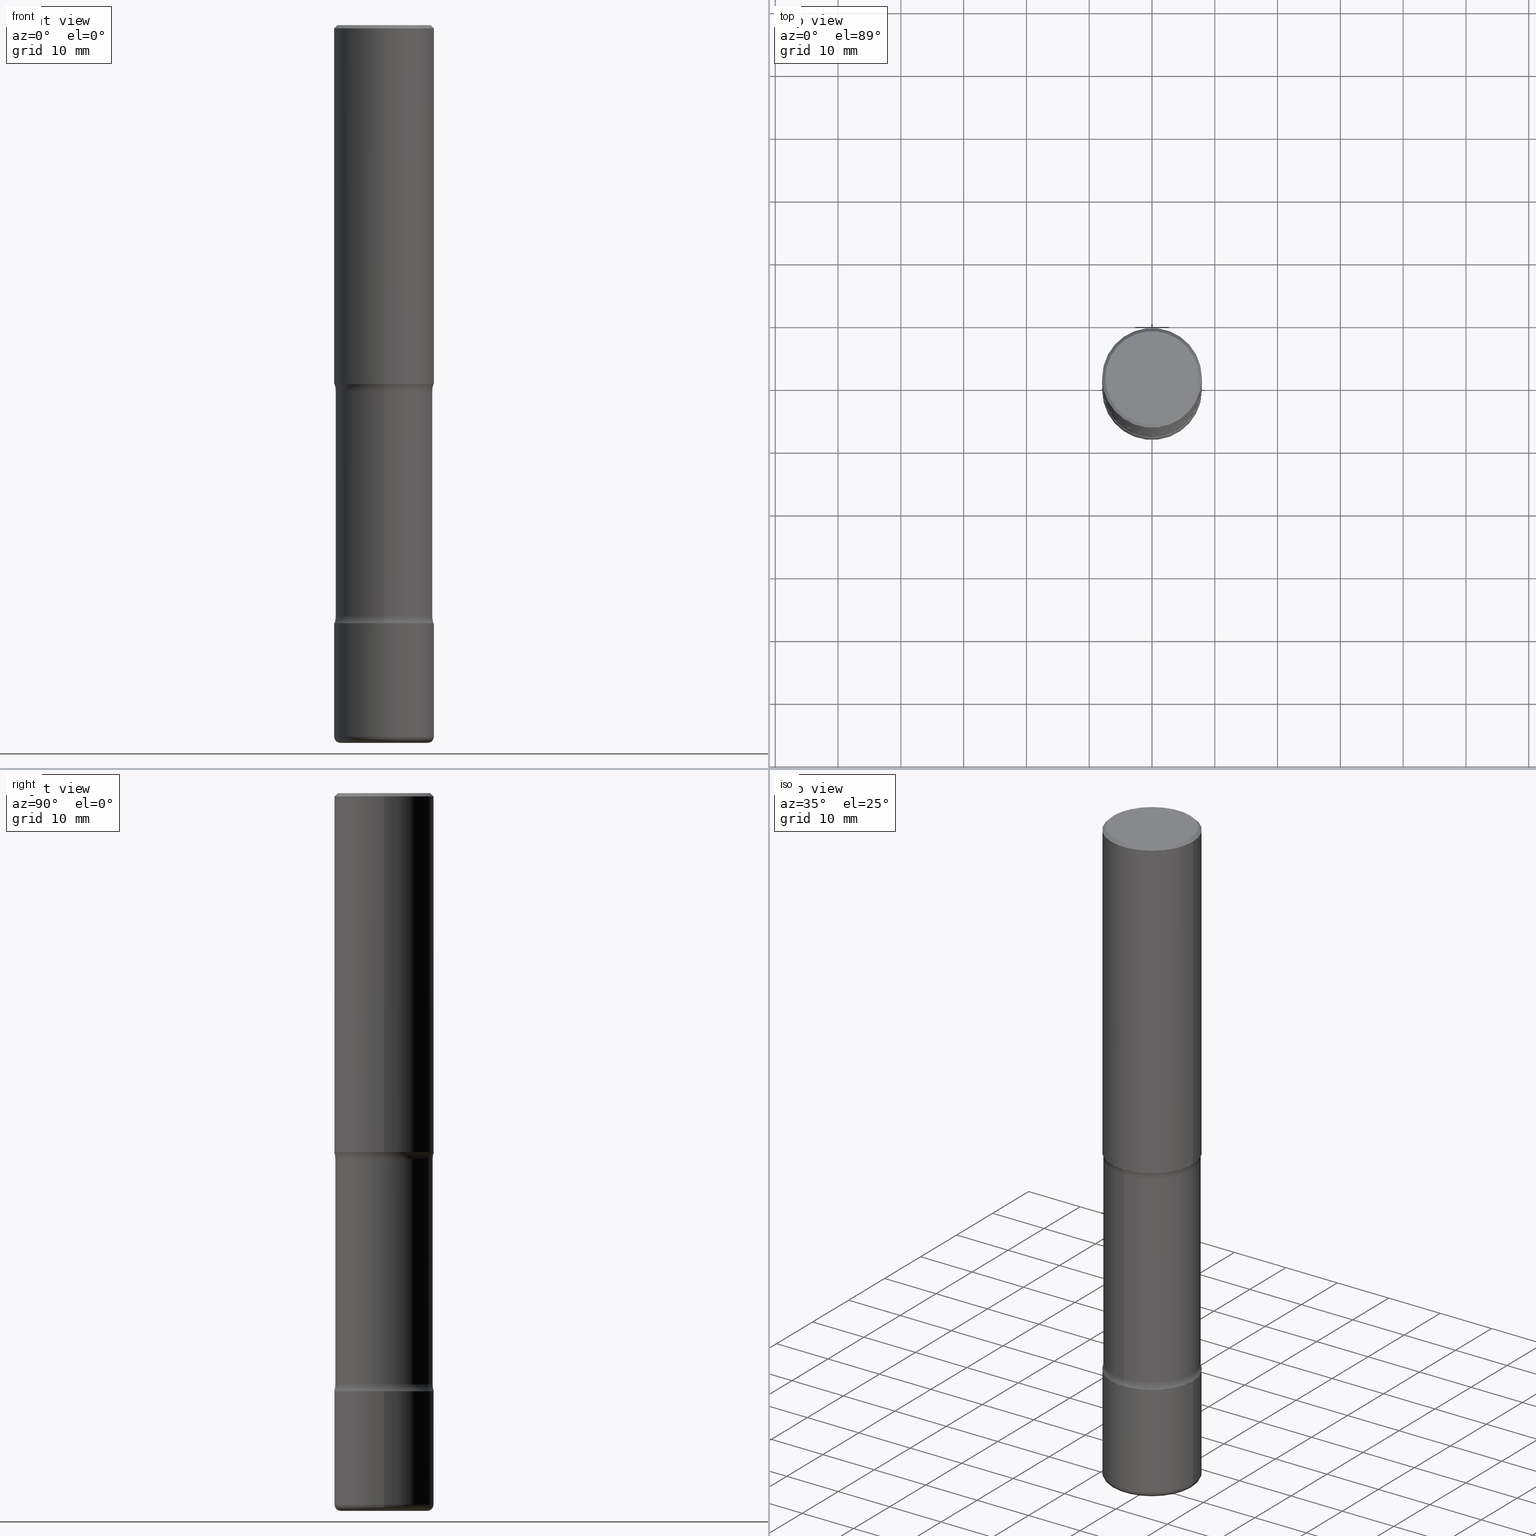
[diagram: canonical four-view strip — front | top / right | iso, engineering-drawing reading convention]
A machine part, canonical four-view strip (front | top / right | iso — engineering-drawing reading convention). The complete STEP part file that produces these views, byte-faithful:
ISO-10303-21;
HEADER;
FILE_DESCRIPTION (( 'STEP AP203' ),
    '1' );
FILE_NAME ('36789.STEP',
    '2024-03-02T00:03:39',
    ( '' ),
    ( '' ),
    'SwSTEP 2.0',
    'SolidWorks 2023',
    '' );
FILE_SCHEMA (( 'CONFIG_CONTROL_DESIGN' ));
ENDSEC;

DATA;
#1 = DIRECTION ( 'NONE',  ( -6.982962677686266711E-15, -1.000000000000000000, 0.000000000000000000 ) ) ;
#2 = DIRECTION ( 'NONE',  ( -6.982962677686265133E-15, -1.000000000000000000, 0.000000000000000000 ) ) ;
#3 = ORIENTED_EDGE ( 'NONE', *, *, #45, .T. ) ;
#4 = AXIS2_PLACEMENT_3D ( 'NONE', #35, #338, #80 ) ;
#5 = ORIENTED_EDGE ( 'NONE', *, *, #199, .T. ) ;
#6 = FACE_OUTER_BOUND ( 'NONE', #243, .T. ) ;
#7 = LENGTH_MEASURE_WITH_UNIT ( LENGTH_MEASURE( 0.02539999999999999897 ), #224 );
#8 = CARTESIAN_POINT ( 'NONE',  ( -0.3125000000000003331, -1.742385270336653059E-15, -2.250000000000000000 ) ) ;
#9 = CARTESIAN_POINT ( 'NONE',  ( 0.3125000000000000000, -2.213735251080466911E-15, -0.02000000000000006981 ) ) ;
#10 = DIRECTION ( 'NONE',  ( 6.982962677686265133E-15, 1.000000000000000000, -3.582751467100671728E-15 ) ) ;
#11 = DIRECTION ( 'NONE',  ( -2.445468806185136597E-29, 3.491481338843145583E-15, 1.000000000000000000 ) ) ;
#12 = PLANE ( 'NONE',  #105 ) ;
#13 = CARTESIAN_POINT ( 'NONE',  ( 9.066216591215492828E-29, -1.294415449588955929E-14, -3.707353194726920265 ) ) ;
#14 = ORIENTED_EDGE ( 'NONE', *, *, #431, .F. ) ;
#15 = CLOSED_SHELL ( 'NONE', ( #333, #326, #342, #138, #538, #22, #516, #240 ) ) ;
#16 = DIRECTION ( 'NONE',  ( -2.445468806185136597E-29, 3.491481338843145583E-15, 1.000000000000000000 ) ) ;
#17 = LOCAL_TIME ( 19, 3, 39.00000000000000000, #439 ) ;
#18 = ADVANCED_FACE ( 'NONE', ( #391 ), #185, .T. ) ;
#19 = ORIENTED_EDGE ( 'NONE', *, *, #31, .T. ) ;
#20 = DIRECTION ( 'NONE',  ( 2.438088387897960049E-29, -3.491481338843145188E-15, -1.000000000000000000 ) ) ;
#21 = ORIENTED_EDGE ( 'NONE', *, *, #31, .F. ) ;
#22 = ADVANCED_FACE ( 'NONE', ( #85 ), #434, .F. ) ;
#23 = CONICAL_SURFACE ( 'NONE', #340, 0.3125000000000000000, 0.7853981633974479459 ) ;
#24 = CIRCLE ( 'NONE', #201, 0.3125000000000001665 ) ;
#25 = CARTESIAN_POINT ( 'NONE',  ( 0.2924999999999999267, -2.110215457714319931E-15, 4.268512490114932791E-18 ) ) ;
#26 = EDGE_LOOP ( 'NONE', ( #19, #500, #464, #206 ) ) ;
#27 = EDGE_LOOP ( 'NONE', ( #56, #93, #5, #423 ) ) ;
#28 = CALENDAR_DATE ( 2024, 1, 3 ) ;
#29 = CIRCLE ( 'NONE', #454, 0.1250000000000000278 ) ;
#30 = CARTESIAN_POINT ( 'NONE',  ( 4.890937612370289799E-31, -6.982962677686315028E-17, -0.02000000000000006981 ) ) ;
#31 = EDGE_CURVE ( 'NONE', #266, #97, #465, .T. ) ;
#32 = EDGE_CURVE ( 'NONE', #71, #217, #350, .T. ) ;
#33 = DIRECTION ( 'NONE',  ( 6.860497997771529985E-15, 1.000000000000000000, 0.000000000000000000 ) ) ;
#34 = DIRECTION ( 'NONE',  ( -6.982962677686266711E-15, -1.000000000000000000, 3.491481338843145583E-15 ) ) ;
#35 = CARTESIAN_POINT ( 'NONE',  ( 9.066216591215492828E-29, -1.294415449588955929E-14, -3.707353194726920265 ) ) ;
#36 = CARTESIAN_POINT ( 'NONE',  ( 5.311540888107860416E-29, -8.129017811763502601E-15, -2.249999999999999556 ) ) ;
#37 = PERSON_AND_ORGANIZATION_ROLE ( 'design_supplier' ) ;
#38 = DIRECTION ( 'NONE',  ( 1.000000000000000000, -6.982962677686264344E-15, 4.883557194083112340E-29 ) ) ;
#39 = ORIENTED_EDGE ( 'NONE', *, *, #74, .F. ) ;
#40 = VECTOR ( 'NONE', #228, 39.37007874015748143 ) ;
#41 = AXIS2_PLACEMENT_3D ( 'NONE', #313, #491, #409 ) ;
#42 = PERSON_AND_ORGANIZATION ( #98, #548 ) ;
#43 = CARTESIAN_POINT ( 'NONE',  ( 3.002673951405150221E-15, 0.4299999999999919442, -2.292646805273081512 ) ) ;
#44 = DIRECTION ( 'NONE',  ( 2.572644756724267881E-29, -3.309358139265528035E-15, -1.000000000000000000 ) ) ;
#45 = EDGE_CURVE ( 'NONE', #132, #150, #91, .T. ) ;
#46 = ORIENTED_EDGE ( 'NONE', *, *, #145, .F. ) ;
#47 = ORIENTED_EDGE ( 'NONE', *, *, #493, .F. ) ;
#48 = DIRECTION ( 'NONE',  ( -2.572644756724267320E-29, 3.309358139265528035E-15, 1.000000000000000000 ) ) ;
#49 = DIRECTION ( 'NONE',  ( -2.445468806185136597E-29, 3.491481338843145583E-15, 1.000000000000000000 ) ) ;
#50 = VECTOR ( 'NONE', #442, 39.37007874015748143 ) ;
#51 = EDGE_CURVE ( 'NONE', #132, #71, #496, .T. ) ;
#52 = TOROIDAL_SURFACE ( 'NONE', #4, 0.4300000000000000488, 0.1250000000000000000 ) ;
#53 = CC_DESIGN_PERSON_AND_ORGANIZATION_ASSIGNMENT ( #130, #549, ( #469 ) ) ;
#54 = CARTESIAN_POINT ( 'NONE',  ( 1.109999159073746203E-28, -1.557507362511094324E-14, -4.500000000000000000 ) ) ;
#55 = CARTESIAN_POINT ( 'NONE',  ( 2.182175836777051038E-15, 0.3124999999999870104, -3.750000000000001332 ) ) ;
#56 = ORIENTED_EDGE ( 'NONE', *, *, #32, .F. ) ;
#57 = ORIENTED_EDGE ( 'NONE', *, *, #324, .F. ) ;
#58 = FACE_OUTER_BOUND ( 'NONE', #405, .T. ) ;
#59 = AXIS2_PLACEMENT_3D ( 'NONE', #13, #486, #267 ) ;
#60 = DIRECTION ( 'NONE',  ( 1.000000000000000000, -6.982962677686266711E-15, 0.000000000000000000 ) ) ;
#61 = AXIS2_PLACEMENT_3D ( 'NONE', #172, #84, #254 ) ;
#62 = ADVANCED_FACE ( 'NONE', ( #288 ), #120, .T. ) ;
#63 = ORIENTED_EDGE ( 'NONE', *, *, #51, .F. ) ;
#64 = PLANE ( 'NONE',  #68 ) ;
#65 = CARTESIAN_POINT ( 'NONE',  ( 1.100460962783311469E-28, -1.571166602479415690E-14, -4.500000000000000000 ) ) ;
#66 = VERTEX_POINT ( 'NONE', #366 ) ;
#67 = ORIENTED_EDGE ( 'NONE', *, *, #294, .T. ) ;
#68 = AXIS2_PLACEMENT_3D ( 'NONE', #417, #20, #198 ) ;
#69 = TOROIDAL_SURFACE ( 'NONE', #285, 0.2725000000000001865, 0.04000000000000004940 ) ;
#70 = ORIENTED_EDGE ( 'NONE', *, *, #515, .T. ) ;
#71 = VERTEX_POINT ( 'NONE', #292 ) ;
#72 = PERSON_AND_ORGANIZATION ( #98, #548 ) ;
#73 = DIRECTION ( 'NONE',  ( -2.445468806185136597E-29, 3.491481338843145583E-15, 1.000000000000000000 ) ) ;
#74 = EDGE_CURVE ( 'NONE', #494, #144, #194, .T. ) ;
#75 = PRODUCT_DEFINITION_SHAPE ( 'NONE', 'NONE',  #469 ) ;
#76 = CARTESIAN_POINT ( 'NONE',  ( 4.890937612370289799E-31, -6.982962677686315028E-17, -0.02000000000000006981 ) ) ;
#77 = SECURITY_CLASSIFICATION_LEVEL ( 'unclassified' ) ;
#78 = AXIS2_PLACEMENT_3D ( 'NONE', #377, #550, #169 ) ;
#79 = CIRCLE ( 'NONE', #253, 0.3125000000000001665 ) ;
#80 = DIRECTION ( 'NONE',  ( 6.982962677686265922E-15, 1.000000000000000000, -3.309358139265528035E-15 ) ) ;
#81 = CARTESIAN_POINT ( 'NONE',  ( 2.129803616694422892E-15, 0.3049999999999845057, -4.500000000000000888 ) ) ;
#82 = PRODUCT ( '36789', '36789', '', ( #102 ) ) ;
#83 = DIRECTION ( 'NONE',  ( 2.438088387897960049E-29, -3.491481338843145188E-15, -1.000000000000000000 ) ) ;
#84 = DIRECTION ( 'NONE',  ( -2.445468806185136597E-29, 3.491481338843145583E-15, 1.000000000000000000 ) ) ;
#85 = FACE_OUTER_BOUND ( 'NONE', #488, .T. ) ;
#86 = DIRECTION ( 'NONE',  ( -2.445468806185136597E-29, 3.491481338843145583E-15, 1.000000000000000000 ) ) ;
#87 = CARTESIAN_POINT ( 'NONE',  ( 5.311540888107860416E-29, -8.129017811763502601E-15, -2.249999999999999556 ) ) ;
#88 = DIRECTION ( 'NONE',  ( 2.572644756724267881E-29, -3.309358139265528035E-15, -1.000000000000000000 ) ) ;
#89 = APPROVAL_ROLE ( '' ) ;
#90 = DIRECTION ( 'NONE',  ( 1.000000000000000000, -6.982962677686265133E-15, 0.000000000000000000 ) ) ;
#91 = CIRCLE ( 'NONE', #187, 0.1250000000000000278 ) ;
#92 = AXIS2_PLACEMENT_3D ( 'NONE', #436, #122, #514 ) ;
#93 = ORIENTED_EDGE ( 'NONE', *, *, #437, .T. ) ;
#94 = DIRECTION ( 'NONE',  ( 1.000000000000000000, -6.982962677686269866E-15, 0.000000000000000000 ) ) ;
#95 = DIRECTION ( 'NONE',  ( -2.445468806185136597E-29, 3.491481338843145583E-15, 1.000000000000000000 ) ) ;
#96 = CARTESIAN_POINT ( 'NONE',  ( 0.000000000000000000, 0.000000000000000000, 0.000000000000000000 ) ) ;
#97 = VERTEX_POINT ( 'NONE', #170 ) ;
#98 = PERSON ( 'UNSPECIFIED', 'UNSPECIFIED', 'UNSPECIFIED', ('UNSPECIFIED'), ('UNSPECIFIED'), ('UNSPECIFIED') ) ;
#99 = CARTESIAN_POINT ( 'NONE',  ( 0.000000000000000000, 0.000000000000000000, 0.000000000000000000 ) ) ;
#100 = DIRECTION ( 'NONE',  ( -1.000000000000000000, 6.982962677686265922E-15, -4.883557194083112901E-29 ) ) ;
#101 = EDGE_LOOP ( 'NONE', ( #57, #477, #367, #499 ) ) ;
#102 = MECHANICAL_CONTEXT ( 'NONE', #396, 'mechanical' ) ;
#103 = VECTOR ( 'NONE', #474, 39.37007874015748143 ) ;
#104 = DIRECTION ( 'NONE',  ( -2.445468806185136597E-29, 3.491481338843145583E-15, 1.000000000000000000 ) ) ;
#105 = AXIS2_PLACEMENT_3D ( 'NONE', #192, #151, #175 ) ;
#106 = CARTESIAN_POINT ( 'NONE',  ( -0.3125000000000001665, -1.211208484670079920E-14, -3.750000000000000000 ) ) ;
#107 = DIRECTION ( 'NONE',  ( 1.000000000000000000, -6.982962677686266711E-15, 4.876067333457690598E-29 ) ) ;
#108 = EDGE_CURVE ( 'NONE', #283, #260, #318, .T. ) ;
#109 = ORIENTED_EDGE ( 'NONE', *, *, #448, .T. ) ;
#110 = CIRCLE ( 'NONE', #164, 0.04000000000000004940 ) ;
#111 = ORIENTED_EDGE ( 'NONE', *, *, #382, .F. ) ;
#112 = CARTESIAN_POINT ( 'NONE',  ( 2.129803616694366488E-15, 0.3049999999999918887, -2.292646805273081512 ) ) ;
#113 = VERTEX_POINT ( 'NONE', #25 ) ;
#114 = UNCERTAINTY_MEASURE_WITH_UNIT (LENGTH_MEASURE( 1.000000000000000082E-05 ), #446, 'distance_accuracy_value', 'NONE');
#115 = CIRCLE ( 'NONE', #479, 0.2924999999999999267 ) ;
#116 = CALENDAR_DATE ( 2024, 1, 3 ) ;
#117 = EDGE_CURVE ( 'NONE', #369, #217, #205, .T. ) ;
#118 = EDGE_LOOP ( 'NONE', ( #46, #238 ) ) ;
#119 = DIRECTION ( 'NONE',  ( 7.105427357601001859E-15, 1.000000000000000000, -3.491481338843145583E-15 ) ) ;
#120 = CYLINDRICAL_SURFACE ( 'NONE', #373, 0.3125000000000001665 ) ;
#121 = COORDINATED_UNIVERSAL_TIME_OFFSET ( 5, 0, .BEHIND. ) ;
#122 = DIRECTION ( 'NONE',  ( 2.572644756724267881E-29, -3.309358139265528035E-15, -1.000000000000000000 ) ) ;
#123 = CARTESIAN_POINT ( 'NONE',  ( 0.2725000000000001865, -1.747486410090994019E-14, -4.459999999999999964 ) ) ;
#124 = DATE_AND_TIME ( #470, #17 ) ;
#125 = FACE_OUTER_BOUND ( 'NONE', #315, .T. ) ;
#126 = CIRCLE ( 'NONE', #252, 0.3125000000000003331 ) ;
#127 = AXIS2_PLACEMENT_3D ( 'NONE', #30, #394, #560 ) ;
#128 = CARTESIAN_POINT ( 'NONE',  ( -2.950014139041668137E-15, -0.4300000000000130385, -3.707353194726918488 ) ) ;
#129 = EDGE_CURVE ( 'NONE', #501, #321, #126, .T. ) ;
#130 = PERSON_AND_ORGANIZATION ( #98, #548 ) ;
#131 = CARTESIAN_POINT ( 'NONE',  ( 6.875805079739170504E-29, -5.888902456958808142E-15, -2.249999999999999556 ) ) ;
#132 = VERTEX_POINT ( 'NONE', #112 ) ;
#133 = DIRECTION ( 'NONE',  ( -2.445468806185136877E-29, 3.491481338843145188E-15, 1.000000000000000000 ) ) ;
#134 = FACE_OUTER_BOUND ( 'NONE', #534, .T. ) ;
#135 = PLANE ( 'NONE',  #284 ) ;
#136 = CARTESIAN_POINT ( 'NONE',  ( 5.421255968084691765E-29, -8.270151363907644823E-15, -2.292646805273080179 ) ) ;
#137 = LOCAL_TIME ( 19, 3, 39.00000000000000000, #247 ) ;
#138 = ADVANCED_FACE ( 'NONE', ( #331 ), #453, .F. ) ;
#139 = ORIENTED_EDGE ( 'NONE', *, *, #220, .F. ) ;
#140 = CYLINDRICAL_SURFACE ( 'NONE', #341, 0.3125000000000001665 ) ;
#141 = LINE ( 'NONE', #445, #422 ) ;
#142 = CARTESIAN_POINT ( 'NONE',  ( 0.3125000000000000000, -2.213735251080466911E-15, -0.02000000000000006981 ) ) ;
#143 = ORIENTED_EDGE ( 'NONE', *, *, #463, .T. ) ;
#144 = VERTEX_POINT ( 'NONE', #291 ) ;
#145 = EDGE_CURVE ( 'NONE', #66, #280, #147, .T. ) ;
#146 = DIRECTION ( 'NONE',  ( 0.7071067811865472397, -7.319954787623254468E-15, -0.7071067811865477948 ) ) ;
#147 = CIRCLE ( 'NONE', #398, 0.2725000000000001310 ) ;
#148 = FACE_OUTER_BOUND ( 'NONE', #101, .T. ) ;
#149 = AXIS2_PLACEMENT_3D ( 'NONE', #527, #49, #357 ) ;
#150 = VERTEX_POINT ( 'NONE', #449 ) ;
#151 = DIRECTION ( 'NONE',  ( 2.438088387897960049E-29, -3.491481338843145188E-15, -1.000000000000000000 ) ) ;
#152 = ORIENTED_EDGE ( 'NONE', *, *, #497, .T. ) ;
#153 = CARTESIAN_POINT ( 'NONE',  ( 0.000000000000000000, 0.000000000000000000, 0.000000000000000000 ) ) ;
#154 = CARTESIAN_POINT ( 'NONE',  ( -0.2725000000000001310, -1.356349889591899753E-14, -4.500000000000000000 ) ) ;
#155 = ORIENTED_EDGE ( 'NONE', *, *, #497, .F. ) ;
#156 = VECTOR ( 'NONE', #133, 39.37007874015748143 ) ;
#157 = CARTESIAN_POINT ( 'NONE',  ( 5.502304813916557343E-29, -7.855833012397078448E-15, -2.250000000000000000 ) ) ;
#158 = AXIS2_PLACEMENT_3D ( 'NONE', #131, #385, #345 ) ;
#159 = ADVANCED_FACE ( 'NONE', ( #524 ), #135, .F. ) ;
#160 = MANIFOLD_SOLID_BREP ( 'Body-Move/Copy2[2]', #273 ) ;
#161 = ADVANCED_FACE ( 'NONE', ( #438 ), #23, .T. ) ;
#162 = MANIFOLD_SOLID_BREP ( 'Body-Move/Copy2[1]', #351 ) ;
#163 = AXIS2_PLACEMENT_3D ( 'NONE', #239, #513, #416 ) ;
#164 = AXIS2_PLACEMENT_3D ( 'NONE', #123, #34, #552 ) ;
#165 = DIRECTION ( 'NONE',  ( 2.572644756724267881E-29, -3.309358139265528035E-15, -1.000000000000000000 ) ) ;
#166 = COORDINATED_UNIVERSAL_TIME_OFFSET ( 5, 0, .BEHIND. ) ;
#167 = CARTESIAN_POINT ( 'NONE',  ( -0.2725000000000001865, -1.363577781629415439E-14, -4.459999999999999964 ) ) ;
#168 = ORIENTED_EDGE ( 'NONE', *, *, #559, .T. ) ;
#169 = DIRECTION ( 'NONE',  ( 6.982962677686265922E-15, 1.000000000000000000, -3.309358139265528035E-15 ) ) ;
#170 = CARTESIAN_POINT ( 'NONE',  ( -0.3125000000000001665, -1.335156072199011406E-14, -4.459999999999999964 ) ) ;
#171 = APPROVAL_STATUS ( 'not_yet_approved' ) ;
#172 = CARTESIAN_POINT ( 'NONE',  ( 4.890937612370289799E-31, -6.982962677686315028E-17, -0.02000000000000006981 ) ) ;
#173 = DATE_AND_TIME ( #28, #137 ) ;
#174 = FACE_OUTER_BOUND ( 'NONE', #478, .T. ) ;
#175 = DIRECTION ( 'NONE',  ( -1.000000000000000000, 6.982962677686265922E-15, -4.876176775795935793E-29 ) ) ;
#176 = AXIS2_PLACEMENT_3D ( 'NONE', #270, #100, #1 ) ;
#177 = ORIENTED_EDGE ( 'NONE', *, *, #493, .T. ) ;
#178 = CIRCLE ( 'NONE', #352, 0.3050000000000001599 ) ;
#179 = LINE ( 'NONE', #343, #156 ) ;
#180 = CARTESIAN_POINT ( 'NONE',  ( 9.170508023194262238E-29, -1.309305502066179741E-14, -3.750000000000000000 ) ) ;
#181 = APPROVAL_DATE_TIME ( #381, #509 ) ;
#182 = CARTESIAN_POINT ( 'NONE',  ( -0.3125000000000001665, 2.220446049250314264E-15, -1.537167215704658792E-29 ) ) ;
#183 = DIRECTION ( 'NONE',  ( -1.000000000000000000, 6.982962677686265922E-15, -4.883557194083112901E-29 ) ) ;
#184 = EDGE_CURVE ( 'NONE', #97, #188, #179, .T. ) ;
#185 = CYLINDRICAL_SURFACE ( 'NONE', #245, 0.3125000000000001665 ) ;
#186 = ORIENTED_EDGE ( 'NONE', *, *, #229, .T. ) ;
#187 = AXIS2_PLACEMENT_3D ( 'NONE', #43, #183, #2 ) ;
#188 = VERTEX_POINT ( 'NONE', #106 ) ;
#189 = EDGE_CURVE ( 'NONE', #501, #144, #337, .T. ) ;
#190 = CARTESIAN_POINT ( 'NONE',  ( -2.143905624303552732E-15, -0.3125000000000084932, -2.249999999999998668 ) ) ;
#191 = DIRECTION ( 'NONE',  ( 1.000000000000000000, -6.982962677686266711E-15, 4.876176775795935232E-29 ) ) ;
#192 = CARTESIAN_POINT ( 'NONE',  ( 2.042516583223232540E-15, 0.2924999999999999267, -1.019124035366569606E-15 ) ) ;
#193 = CC_DESIGN_PERSON_AND_ORGANIZATION_ASSIGNMENT ( #468, #37, ( #328 ) ) ;
#194 = CIRCLE ( 'NONE', #413, 0.3125000000000000000 ) ;
#195 = APPROVAL_PERSON_ORGANIZATION ( #375, #509, #553 ) ;
#196 = LINE ( 'NONE', #277, #40 ) ;
#197 = ORIENTED_EDGE ( 'NONE', *, *, #324, .T. ) ;
#198 = DIRECTION ( 'NONE',  ( -1.000000000000000000, 6.982962677686265922E-15, -4.876176775795935793E-29 ) ) ;
#199 = EDGE_CURVE ( 'NONE', #132, #369, #274, .T. ) ;
#200 = DIMENSIONAL_EXPONENTS ( 1.000000000000000000, 0.000000000000000000, 0.000000000000000000, 0.000000000000000000, 0.000000000000000000, 0.000000000000000000, 0.000000000000000000 ) ;
#201 = AXIS2_PLACEMENT_3D ( 'NONE', #475, #88, #401 ) ;
#202 = CARTESIAN_POINT ( 'NONE',  ( 5.502304813916557343E-29, -7.855833012397078448E-15, -2.250000000000000000 ) ) ;
#203 = EDGE_LOOP ( 'NONE', ( #372, #537, #544, #249 ) ) ;
#204 = ADVANCED_FACE ( 'NONE', ( #134 ), #421, .T. ) ;
#205 = CIRCLE ( 'NONE', #535, 0.3049999999999999933 ) ;
#206 = ORIENTED_EDGE ( 'NONE', *, *, #232, .F. ) ;
#207 = APPROVAL_PERSON_ORGANIZATION ( #72, #389, #379 ) ;
#208 = DIRECTION ( 'NONE',  ( 1.000000000000000000, -6.982962677686264344E-15, 0.000000000000000000 ) ) ;
#209 = DIRECTION ( 'NONE',  ( 1.000000000000000000, -6.860497997771530774E-15, 4.843029245558275564E-29 ) ) ;
#210 = DATE_AND_TIME ( #289, #414 ) ;
#211 = DIRECTION ( 'NONE',  ( -2.445468806185136597E-29, 3.491481338843145583E-15, 1.000000000000000000 ) ) ;
#212 = PERSON_AND_ORGANIZATION_ROLE ( 'classification_officer' ) ;
#213 = AXIS2_PLACEMENT_3D ( 'NONE', #157, #322, #452 ) ;
#214 = ORIENTED_EDGE ( 'NONE', *, *, #45, .F. ) ;
#215 = AXIS2_PLACEMENT_3D ( 'NONE', #87, #44, #393 ) ;
#216 = APPLICATION_PROTOCOL_DEFINITION ( 'international standard', 'config_control_design', 1994, #427 ) ;
#217 = VERTEX_POINT ( 'NONE', #521 ) ;
#218 = LINE ( 'NONE', #392, #374 ) ;
#219 = CARTESIAN_POINT ( 'NONE',  ( 1.090679087558570850E-28, -1.557200677124043030E-14, -4.459999999999999964 ) ) ;
#220 = EDGE_CURVE ( 'NONE', #268, #113, #115, .T. ) ;
#221 = FACE_OUTER_BOUND ( 'NONE', #227, .T. ) ;
#222 = CARTESIAN_POINT ( 'NONE',  ( 0.3125000000000001665, -1.775418260801738707E-14, -4.459999999999999964 ) ) ;
#223 = ORIENTED_EDGE ( 'NONE', *, *, #408, .T. ) ;
#224 =( LENGTH_UNIT ( ) NAMED_UNIT ( * ) SI_UNIT ( $, .METRE. ) );
#225 = DIRECTION ( 'NONE',  ( -2.445468806185136597E-29, 3.491481338843145583E-15, 1.000000000000000000 ) ) ;
#226 = AXIS2_PLACEMENT_3D ( 'NONE', #128, #471, #33 ) ;
#227 = EDGE_LOOP ( 'NONE', ( #412, #143, #21, #111 ) ) ;
#228 = DIRECTION ( 'NONE',  ( -0.7071067811865472397, 2.468850131082253905E-15, -0.7071067811865477948 ) ) ;
#229 = EDGE_CURVE ( 'NONE', #283, #369, #440, .T. ) ;
#230 = FACE_OUTER_BOUND ( 'NONE', #526, .T. ) ;
#231 = DIRECTION ( 'NONE',  ( 1.000000000000000000, -6.982962677686265133E-15, 0.000000000000000000 ) ) ;
#232 = EDGE_CURVE ( 'NONE', #266, #418, #218, .T. ) ;
#233 = ORIENTED_EDGE ( 'NONE', *, *, #189, .T. ) ;
#234 = DIRECTION ( 'NONE',  ( 2.572644756724267881E-29, -3.309358139265528035E-15, -1.000000000000000000 ) ) ;
#235 = DIRECTION ( 'NONE',  ( -1.000000000000000000, 7.105427357601014480E-15, 0.000000000000000000 ) ) ;
#236 = AXIS2_PLACEMENT_3D ( 'NONE', #406, #104, #107 ) ;
#237 = CC_DESIGN_APPROVAL ( #509, ( #469 ) ) ;
#238 = ORIENTED_EDGE ( 'NONE', *, *, #485, .F. ) ;
#239 = CARTESIAN_POINT ( 'NONE',  ( 9.170508023194262238E-29, -1.309305502066179741E-14, -3.750000000000000000 ) ) ;
#240 = ADVANCED_FACE ( 'NONE', ( #480 ), #269, .T. ) ;
#241 = ORIENTED_EDGE ( 'NONE', *, *, #282, .T. ) ;
#242 = ORIENTED_EDGE ( 'NONE', *, *, #108, .F. ) ;
#243 = EDGE_LOOP ( 'NONE', ( #327, #365, #308, #214 ) ) ;
#244 = ORIENTED_EDGE ( 'NONE', *, *, #525, .F. ) ;
#245 = AXIS2_PLACEMENT_3D ( 'NONE', #96, #225, #517 ) ;
#246 = AXIS2_PLACEMENT_3D ( 'NONE', #429, #211, #90 ) ;
#247 = COORDINATED_UNIVERSAL_TIME_OFFSET ( 5, 0, .BEHIND. ) ;
#248 =( NAMED_UNIT ( * ) SI_UNIT ( $, .STERADIAN. ) SOLID_ANGLE_UNIT ( ) );
#249 = ORIENTED_EDGE ( 'NONE', *, *, #199, .F. ) ;
#250 = CARTESIAN_POINT ( 'NONE',  ( -2.950014139041705213E-15, -0.4300000000000084310, -2.292646805273078847 ) ) ;
#251 = DESIGN_CONTEXT ( 'detailed design', #427, 'design' ) ;
#252 = AXIS2_PLACEMENT_3D ( 'NONE', #202, #502, #208 ) ;
#253 = AXIS2_PLACEMENT_3D ( 'NONE', #311, #364, #231 ) ;
#254 = DIRECTION ( 'NONE',  ( 1.000000000000000000, -6.982962677686266711E-15, 0.000000000000000000 ) ) ;
#255 = CALENDAR_DATE ( 2024, 1, 3 ) ;
#256 = APPROVAL_STATUS ( 'not_yet_approved' ) ;
#257 = AXIS2_PLACEMENT_3D ( 'NONE', #531, #487, #410 ) ;
#258 = LOCAL_TIME ( 19, 3, 39.00000000000000000, #121 ) ;
#259 = DIRECTION ( 'NONE',  ( 2.572644756724267881E-29, -3.309358139265528035E-15, -1.000000000000000000 ) ) ;
#260 = VERTEX_POINT ( 'NONE', #447 ) ;
#261 = DIRECTION ( 'NONE',  ( 1.000000000000000000, 0.000000000000000000, 0.000000000000000000 ) ) ;
#262 = DIRECTION ( 'NONE',  ( -2.445468806185136597E-29, 3.491481338843145583E-15, 1.000000000000000000 ) ) ;
#263 = CARTESIAN_POINT ( 'NONE',  ( 1.109999159073746203E-28, -1.557507362511094324E-14, -4.500000000000000000 ) ) ;
#264 = AXIS2_PLACEMENT_3D ( 'NONE', #136, #259, #511 ) ;
#265 = AXIS2_PLACEMENT_3D ( 'NONE', #36, #522, #301 ) ;
#266 = VERTEX_POINT ( 'NONE', #222 ) ;
#267 = DIRECTION ( 'NONE',  ( 6.982962677686265922E-15, 1.000000000000000000, -3.309358139265528035E-15 ) ) ;
#268 = VERTEX_POINT ( 'NONE', #395 ) ;
#269 = CYLINDRICAL_SURFACE ( 'NONE', #554, 0.3050000000000001044 ) ;
#270 = CARTESIAN_POINT ( 'NONE',  ( 3.002673951405185720E-15, 0.4299999999999870592, -3.707353194726921597 ) ) ;
#271 = DIRECTION ( 'NONE',  ( 1.000000000000000000, -6.982962677686266711E-15, 4.876176775795935232E-29 ) ) ;
#272 = ADVANCED_FACE ( 'NONE', ( #58 ), #359, .T. ) ;
#273 = CLOSED_SHELL ( 'NONE', ( #62, #354, #161, #456, #316, #450 ) ) ;
#274 = LINE ( 'NONE', #81, #103 ) ;
#275 = CIRCLE ( 'NONE', #61, 0.3125000000000000000 ) ;
#276 = CC_DESIGN_SECURITY_CLASSIFICATION ( #376, ( #328 ) ) ;
#277 = CARTESIAN_POINT ( 'NONE',  ( -0.3125000000000000000, 2.112346210000095443E-15, -0.02000000000000006981 ) ) ;
#278 = ORIENTED_EDGE ( 'NONE', *, *, #189, .F. ) ;
#279 = ORIENTED_EDGE ( 'NONE', *, *, #463, .F. ) ;
#280 = VERTEX_POINT ( 'NONE', #154 ) ;
#281 = ORIENTED_EDGE ( 'NONE', *, *, #419, .F. ) ;
#282 = EDGE_CURVE ( 'NONE', #418, #188, #506, .T. ) ;
#283 = VERTEX_POINT ( 'NONE', #55 ) ;
#284 = AXIS2_PLACEMENT_3D ( 'NONE', #336, #83, #295 ) ;
#285 = AXIS2_PLACEMENT_3D ( 'NONE', #306, #95, #353 ) ;
#286 = CC_DESIGN_PERSON_AND_ORGANIZATION_ASSIGNMENT ( #293, #556, ( #82 ) ) ;
#287 = ORIENTED_EDGE ( 'NONE', *, *, #382, .T. ) ;
#288 = FACE_OUTER_BOUND ( 'NONE', #505, .T. ) ;
#289 = CALENDAR_DATE ( 2024, 1, 3 ) ;
#290 = CARTESIAN_POINT ( 'NONE',  ( -1.043851414335219820E-46, 1.490343170380447200E-32, 4.268512490100411279E-18 ) ) ;
#291 = CARTESIAN_POINT ( 'NONE',  ( -0.3125000000000000000, 2.112346210000095443E-15, -0.02000000000000006981 ) ) ;
#292 = CARTESIAN_POINT ( 'NONE',  ( -2.118178756811908447E-15, -0.3050000000000084310, -2.292646805273079291 ) ) ;
#293 = PERSON_AND_ORGANIZATION ( #98, #548 ) ;
#294 = EDGE_CURVE ( 'NONE', #268, #144, #196, .T. ) ;
#295 = DIRECTION ( 'NONE',  ( -1.000000000000000000, 6.982962677686265922E-15, -4.876176775795935793E-29 ) ) ;
#296 = CC_DESIGN_PERSON_AND_ORGANIZATION_ASSIGNMENT ( #476, #519, ( #328 ) ) ;
#297 =( NAMED_UNIT ( * ) PLANE_ANGLE_UNIT ( ) SI_UNIT ( $, .RADIAN. ) );
#298 = CIRCLE ( 'NONE', #226, 0.1250000000000000000 ) ;
#299 = DIRECTION ( 'NONE',  ( 2.572644756724267881E-29, -3.309358139265528035E-15, -1.000000000000000000 ) ) ;
#300 = DATE_TIME_ROLE ( 'classification_date' ) ;
#301 = DIRECTION ( 'NONE',  ( 6.982962677686265922E-15, 1.000000000000000000, -3.496765431890251792E-15 ) ) ;
#302 = ADVANCED_FACE ( 'NONE', ( #495 ), #64, .T. ) ;
#303 = ORIENTED_EDGE ( 'NONE', *, *, #431, .T. ) ;
#304 = AXIS2_PLACEMENT_3D ( 'NONE', #387, #86, #38 ) ;
#305 = CC_DESIGN_APPROVAL ( #389, ( #328 ) ) ;
#306 = CARTESIAN_POINT ( 'NONE',  ( 1.090679087558570850E-28, -1.557200677124043030E-14, -4.459999999999999964 ) ) ;
#307 = DIRECTION ( 'NONE',  ( 2.572644756724267881E-29, -3.309358139265528035E-15, -1.000000000000000000 ) ) ;
#308 = ORIENTED_EDGE ( 'NONE', *, *, #419, .T. ) ;
#309 = EDGE_LOOP ( 'NONE', ( #356, #303, #70, #483 ) ) ;
#310 = APPROVAL ( #256, 'UNSPECIFIED' ) ;
#311 = CARTESIAN_POINT ( 'NONE',  ( 9.170508023194262238E-29, -1.309305502066179741E-14, -3.750000000000000000 ) ) ;
#312 = FACE_OUTER_BOUND ( 'NONE', #309, .T. ) ;
#313 = CARTESIAN_POINT ( 'NONE',  ( 5.502304813916557343E-29, -7.855833012397078448E-15, -2.250000000000000000 ) ) ;
#314 = CARTESIAN_POINT ( 'NONE',  ( 5.415832320086630947E-29, -8.277918336535740726E-15, -2.292646805273080179 ) ) ;
#315 = EDGE_LOOP ( 'NONE', ( #14, #242, #186, #426 ) ) ;
#316 = ADVANCED_FACE ( 'NONE', ( #368 ), #540, .F. ) ;
#317 = ORIENTED_EDGE ( 'NONE', *, *, #184, .F. ) ;
#318 = CIRCLE ( 'NONE', #163, 0.3125000000000001665 ) ;
#319 = ADVANCED_BREP_SHAPE_REPRESENTATION ( '36789', ( #162, #160, #348, #441 ), #388 ) ;
#320 = CIRCLE ( 'NONE', #246, 0.3125000000000001665 ) ;
#321 = VERTEX_POINT ( 'NONE', #457 ) ;
#322 = DIRECTION ( 'NONE',  ( -2.438088387897960049E-29, 3.491481338843145188E-15, 1.000000000000000000 ) ) ;
#323 = ORIENTED_EDGE ( 'NONE', *, *, #559, .F. ) ;
#324 = EDGE_CURVE ( 'NONE', #113, #268, #363, .T. ) ;
#325 = DIRECTION ( 'NONE',  ( 6.982962677686266711E-15, 1.000000000000000000, -3.582751467100673306E-15 ) ) ;
#326 = ADVANCED_FACE ( 'NONE', ( #312 ), #546, .F. ) ;
#327 = ORIENTED_EDGE ( 'NONE', *, *, #437, .F. ) ;
#328 = PRODUCT_DEFINITION_FORMATION_WITH_SPECIFIED_SOURCE ( 'ANY', '', #82, .NOT_KNOWN. ) ;
#329 = ORIENTED_EDGE ( 'NONE', *, *, #448, .F. ) ;
#330 = ORIENTED_EDGE ( 'NONE', *, *, #108, .T. ) ;
#331 = FACE_OUTER_BOUND ( 'NONE', #543, .T. ) ;
#332 = APPROVAL_DATE_TIME ( #210, #389 ) ;
#333 = ADVANCED_FACE ( 'NONE', ( #358 ), #455, .T. ) ;
#334 = VERTEX_POINT ( 'NONE', #190 ) ;
#335 = CC_DESIGN_DATE_AND_TIME_ASSIGNMENT ( #173, #300, ( #376 ) ) ;
#336 = CARTESIAN_POINT ( 'NONE',  ( 9.170508023194262238E-29, -1.309305502066179741E-14, -3.750000000000000000 ) ) ;
#337 = LINE ( 'NONE', #182, #541 ) ;
#338 = DIRECTION ( 'NONE',  ( 2.572644756724267881E-29, -3.309358139265528035E-15, -1.000000000000000000 ) ) ;
#339 = DIRECTION ( 'NONE',  ( -1.000000000000000000, 6.982962677686266711E-15, 0.000000000000000000 ) ) ;
#340 = AXIS2_PLACEMENT_3D ( 'NONE', #430, #380, #339 ) ;
#341 = AXIS2_PLACEMENT_3D ( 'NONE', #484, #424, #360 ) ;
#342 = ADVANCED_FACE ( 'NONE', ( #6 ), #370, .F. ) ;
#343 = CARTESIAN_POINT ( 'NONE',  ( -0.3125000000000001665, 2.220446049250314264E-15, -1.537167215704658792E-29 ) ) ;
#344 = APPROVAL_DATE_TIME ( #384, #310 ) ;
#345 = DIRECTION ( 'NONE',  ( 6.982962677686265922E-15, 1.000000000000000000, -3.309358139265528035E-15 ) ) ;
#346 = EDGE_LOOP ( 'NONE', ( #504, #139, #67, #223 ) ) ;
#347 = CARTESIAN_POINT ( 'NONE',  ( 2.129803616694401592E-15, 0.3049999999999870592, -3.707353194726921153 ) ) ;
#348 = MANIFOLD_SOLID_BREP ( 'Body-Move/Copy2[4]', #15 ) ;
#349 = DIRECTION ( 'NONE',  ( -2.445468806185136877E-29, 3.491481338843145188E-15, 1.000000000000000000 ) ) ;
#350 = LINE ( 'NONE', #404, #50 ) ;
#351 = CLOSED_SHELL ( 'NONE', ( #18, #503, #302, #204, #272, #159 ) ) ;
#352 = AXIS2_PLACEMENT_3D ( 'NONE', #444, #299, #432 ) ;
#353 = DIRECTION ( 'NONE',  ( 1.000000000000000000, -6.982962677686264344E-15, 4.883557194083112340E-29 ) ) ;
#354 = ADVANCED_FACE ( 'NONE', ( #148 ), #507, .T. ) ;
#355 = CARTESIAN_POINT ( 'NONE',  ( 0.000000000000000000, 0.000000000000000000, 0.000000000000000000 ) ) ;
#356 = ORIENTED_EDGE ( 'NONE', *, *, #425, .F. ) ;
#357 = DIRECTION ( 'NONE',  ( 1.000000000000000000, -6.982962677686269866E-15, 0.000000000000000000 ) ) ;
#358 = FACE_OUTER_BOUND ( 'NONE', #203, .T. ) ;
#359 = CYLINDRICAL_SURFACE ( 'NONE', #386, 0.3125000000000001665 ) ;
#360 = DIRECTION ( 'NONE',  ( 1.000000000000000000, -6.982962677686266711E-15, 4.876176775795935232E-29 ) ) ;
#361 = ORIENTED_EDGE ( 'NONE', *, *, #371, .F. ) ;
#362 = DIRECTION ( 'NONE',  ( 1.000000000000000000, -6.982962677686265133E-15, 0.000000000000000000 ) ) ;
#363 = CIRCLE ( 'NONE', #236, 0.2924999999999999267 ) ;
#364 = DIRECTION ( 'NONE',  ( -2.445468806185136597E-29, 3.491481338843145583E-15, 1.000000000000000000 ) ) ;
#365 = ORIENTED_EDGE ( 'NONE', *, *, #371, .T. ) ;
#366 = CARTESIAN_POINT ( 'NONE',  ( 0.2725000000000001310, -1.761452335446366678E-14, -4.500000000000000000 ) ) ;
#367 = ORIENTED_EDGE ( 'NONE', *, *, #74, .T. ) ;
#368 = FACE_OUTER_BOUND ( 'NONE', #411, .T. ) ;
#369 = VERTEX_POINT ( 'NONE', #347 ) ;
#370 = TOROIDAL_SURFACE ( 'NONE', #498, 0.4300000000000002154, 0.1250000000000000278 ) ;
#371 = EDGE_CURVE ( 'NONE', #71, #334, #29, .T. ) ;
#372 = ORIENTED_EDGE ( 'NONE', *, *, #51, .T. ) ;
#373 = AXIS2_PLACEMENT_3D ( 'NONE', #153, #16, #271 ) ;
#374 = VECTOR ( 'NONE', #349, 39.37007874015748143 ) ;
#375 = PERSON_AND_ORGANIZATION ( #98, #548 ) ;
#376 = SECURITY_CLASSIFICATION ( '', '', #77 ) ;
#377 = CARTESIAN_POINT ( 'NONE',  ( 5.415832320086630947E-29, -8.277918336535740726E-15, -2.292646805273080179 ) ) ;
#378 = DIRECTION ( 'NONE',  ( 6.860497997771529985E-15, 1.000000000000000000, 0.000000000000000000 ) ) ;
#379 = APPROVAL_ROLE ( '' ) ;
#380 = DIRECTION ( 'NONE',  ( 2.445468806185136597E-29, -3.491481338843145583E-15, -1.000000000000000000 ) ) ;
#381 = DATE_AND_TIME ( #255, #258 ) ;
#382 = EDGE_CURVE ( 'NONE', #66, #266, #110, .T. ) ;
#383 = DIRECTION ( 'NONE',  ( -2.445468806185136597E-29, 3.491481338843145583E-15, 1.000000000000000000 ) ) ;
#384 = DATE_AND_TIME ( #116, #460 ) ;
#385 = DIRECTION ( 'NONE',  ( 2.572644756724267320E-29, -3.309358139265528035E-15, -1.000000000000000000 ) ) ;
#386 = AXIS2_PLACEMENT_3D ( 'NONE', #99, #262, #191 ) ;
#387 = CARTESIAN_POINT ( 'NONE',  ( 1.090679087558570850E-28, -1.557200677124043030E-14, -4.459999999999999964 ) ) ;
#388 =( GEOMETRIC_REPRESENTATION_CONTEXT ( 3 ) GLOBAL_UNCERTAINTY_ASSIGNED_CONTEXT ( ( #114 ) ) GLOBAL_UNIT_ASSIGNED_CONTEXT ( ( #446, #297, #248 ) ) REPRESENTATION_CONTEXT ( 'NONE', 'WORKASPACE' ) );
#389 = APPROVAL ( #171, 'UNSPECIFIED' ) ;
#390 = SHAPE_DEFINITION_REPRESENTATION ( #75, #319 ) ;
#391 = FACE_OUTER_BOUND ( 'NONE', #26, .T. ) ;
#392 = CARTESIAN_POINT ( 'NONE',  ( 0.3125000000000001665, -2.182175836776959530E-15, 1.523805242436230636E-29 ) ) ;
#393 = DIRECTION ( 'NONE',  ( 6.982962677686265922E-15, 1.000000000000000000, -3.496765431890251792E-15 ) ) ;
#394 = DIRECTION ( 'NONE',  ( 2.445468806185136597E-29, -3.491481338843145583E-15, -1.000000000000000000 ) ) ;
#395 = CARTESIAN_POINT ( 'NONE',  ( -0.2924999999999999267, 2.077431396611664189E-15, 4.268512490086005323E-18 ) ) ;
#396 = APPLICATION_CONTEXT ( 'configuration controlled 3d designs of mechanical parts and assemblies' ) ;
#397 = ORIENTED_EDGE ( 'NONE', *, *, #129, .T. ) ;
#398 = AXIS2_PLACEMENT_3D ( 'NONE', #65, #383, #94 ) ;
#399 = CIRCLE ( 'NONE', #92, 0.3049999999999999933 ) ;
#400 = ORIENTED_EDGE ( 'NONE', *, *, #129, .F. ) ;
#401 = DIRECTION ( 'NONE',  ( 6.982962677686265133E-15, 1.000000000000000000, -3.496765431890254947E-15 ) ) ;
#402 = ORIENTED_EDGE ( 'NONE', *, *, #485, .T. ) ;
#403 = DIRECTION ( 'NONE',  ( 6.982962677686265133E-15, 1.000000000000000000, -3.582751467100671728E-15 ) ) ;
#404 = CARTESIAN_POINT ( 'NONE',  ( -2.092451889320206576E-15, -0.3050000000000156475, -4.499999999999999112 ) ) ;
#405 = EDGE_LOOP ( 'NONE', ( #317, #407, #443, #155 ) ) ;
#406 = CARTESIAN_POINT ( 'NONE',  ( -1.043851414335219820E-46, 1.490343170380447200E-32, 4.268512490100411279E-18 ) ) ;
#407 = ORIENTED_EDGE ( 'NONE', *, *, #525, .T. ) ;
#408 = EDGE_CURVE ( 'NONE', #144, #494, #275, .T. ) ;
#409 = DIRECTION ( 'NONE',  ( 1.000000000000000000, -6.982962677686264344E-15, 0.000000000000000000 ) ) ;
#410 = DIRECTION ( 'NONE',  ( 1.000000000000000000, -6.982962677686265133E-15, 0.000000000000000000 ) ) ;
#411 = EDGE_LOOP ( 'NONE', ( #323, #400 ) ) ;
#412 = ORIENTED_EDGE ( 'NONE', *, *, #145, .T. ) ;
#413 = AXIS2_PLACEMENT_3D ( 'NONE', #76, #551, #60 ) ;
#414 = LOCAL_TIME ( 19, 3, 39.00000000000000000, #166 ) ;
#415 = CC_DESIGN_PERSON_AND_ORGANIZATION_ASSIGNMENT ( #42, #212, ( #376 ) ) ;
#416 = DIRECTION ( 'NONE',  ( 6.982962677686265133E-15, 1.000000000000000000, -3.496765431890254947E-15 ) ) ;
#417 = CARTESIAN_POINT ( 'NONE',  ( 1.100460962783311469E-28, -1.571166602479415690E-14, -4.500000000000000000 ) ) ;
#418 = VERTEX_POINT ( 'NONE', #433 ) ;
#419 = EDGE_CURVE ( 'NONE', #334, #150, #542, .T. ) ;
#420 = CC_DESIGN_DATE_AND_TIME_ASSIGNMENT ( #124, #435, ( #469 ) ) ;
#421 = TOROIDAL_SURFACE ( 'NONE', #304, 0.2725000000000001865, 0.04000000000000004940 ) ;
#422 = VECTOR ( 'NONE', #529, 39.37007874015748143 ) ;
#423 = ORIENTED_EDGE ( 'NONE', *, *, #515, .F. ) ;
#424 = DIRECTION ( 'NONE',  ( -2.445468806185136597E-29, 3.491481338843145583E-15, 1.000000000000000000 ) ) ;
#425 = EDGE_CURVE ( 'NONE', #260, #283, #24, .T. ) ;
#426 = ORIENTED_EDGE ( 'NONE', *, *, #117, .T. ) ;
#427 = APPLICATION_CONTEXT ( 'configuration controlled 3d designs of mechanical parts and assemblies' ) ;
#428 = AXIS2_PLACEMENT_3D ( 'NONE', #167, #119, #235 ) ;
#429 = CARTESIAN_POINT ( 'NONE',  ( 1.090679087558570850E-28, -1.557200677124043030E-14, -4.459999999999999964 ) ) ;
#430 = CARTESIAN_POINT ( 'NONE',  ( 4.890937612370289799E-31, -6.982962677686315028E-17, -0.02000000000000006981 ) ) ;
#431 = EDGE_CURVE ( 'NONE', #260, #217, #298, .T. ) ;
#432 = DIRECTION ( 'NONE',  ( 6.982962677686266711E-15, 1.000000000000000000, -3.582751467100670940E-15 ) ) ;
#433 = CARTESIAN_POINT ( 'NONE',  ( 0.3125000000000001665, -1.527523085743875734E-14, -3.750000000000000000 ) ) ;
#434 = PLANE ( 'NONE',  #472 ) ;
#435 = DATE_TIME_ROLE ( 'creation_date' ) ;
#436 = CARTESIAN_POINT ( 'NONE',  ( 9.060792943217432011E-29, -1.295192146851765677E-14, -3.707353194726920265 ) ) ;
#437 = EDGE_CURVE ( 'NONE', #71, #132, #178, .T. ) ;
#438 = FACE_OUTER_BOUND ( 'NONE', #346, .T. ) ;
#439 = COORDINATED_UNIVERSAL_TIME_OFFSET ( 5, 0, .BEHIND. ) ;
#440 = CIRCLE ( 'NONE', #176, 0.1250000000000000000 ) ;
#441 = AXIS2_PLACEMENT_3D ( 'NONE', #355, #528, #261 ) ;
#442 = DIRECTION ( 'NONE',  ( 2.572644756724267881E-29, -3.309358139265528035E-15, -1.000000000000000000 ) ) ;
#443 = ORIENTED_EDGE ( 'NONE', *, *, #232, .T. ) ;
#444 = CARTESIAN_POINT ( 'NONE',  ( 5.421255968084691765E-29, -8.270151363907644823E-15, -2.292646805273080179 ) ) ;
#445 = CARTESIAN_POINT ( 'NONE',  ( 0.3125000000000001665, -2.182175836776959530E-15, 1.523805242436230636E-29 ) ) ;
#446 =( CONVERSION_BASED_UNIT ( 'INCH', #7 ) LENGTH_UNIT ( ) NAMED_UNIT ( #200 ) );
#447 = CARTESIAN_POINT ( 'NONE',  ( -2.143905624303512500E-15, -0.3125000000000132672, -3.749999999999999112 ) ) ;
#448 = EDGE_CURVE ( 'NONE', #150, #334, #466, .T. ) ;
#449 = CARTESIAN_POINT ( 'NONE',  ( 2.182175836777014356E-15, 0.3124999999999922839, -2.250000000000000888 ) ) ;
#450 = ADVANCED_FACE ( 'NONE', ( #230 ), #140, .T. ) ;
#451 = EDGE_LOOP ( 'NONE', ( #462, #197 ) ) ;
#452 = DIRECTION ( 'NONE',  ( 1.000000000000000000, -6.982962677686265922E-15, 4.876176775795935793E-29 ) ) ;
#453 = TOROIDAL_SURFACE ( 'NONE', #78, 0.4300000000000002154, 0.1250000000000000278 ) ;
#454 = AXIS2_PLACEMENT_3D ( 'NONE', #250, #209, #378 ) ;
#455 = CYLINDRICAL_SURFACE ( 'NONE', #518, 0.3050000000000001044 ) ;
#456 = ADVANCED_FACE ( 'NONE', ( #490 ), #12, .F. ) ;
#457 = CARTESIAN_POINT ( 'NONE',  ( 0.3125000000000003331, -1.003800884917403837E-14, -2.250000000000000000 ) ) ;
#458 = ORIENTED_EDGE ( 'NONE', *, *, #408, .F. ) ;
#459 = AXIS2_PLACEMENT_3D ( 'NONE', #219, #11, #362 ) ;
#460 = LOCAL_TIME ( 19, 3, 39.00000000000000000, #508 ) ;
#461 = APPROVAL_PERSON_ORGANIZATION ( #512, #310, #89 ) ;
#462 = ORIENTED_EDGE ( 'NONE', *, *, #220, .T. ) ;
#463 = EDGE_CURVE ( 'NONE', #280, #97, #536, .T. ) ;
#464 = ORIENTED_EDGE ( 'NONE', *, *, #282, .F. ) ;
#465 = CIRCLE ( 'NONE', #459, 0.3125000000000001665 ) ;
#466 = CIRCLE ( 'NONE', #215, 0.3125000000000004441 ) ;
#467 = EDGE_LOOP ( 'NONE', ( #241, #152 ) ) ;
#468 = PERSON_AND_ORGANIZATION ( #98, #548 ) ;
#469 = PRODUCT_DEFINITION ( 'UNKNOWN', '', #328, #251 ) ;
#470 = CALENDAR_DATE ( 2024, 1, 3 ) ;
#471 = DIRECTION ( 'NONE',  ( 1.000000000000000000, -6.860497997771530774E-15, 4.843029245558275564E-29 ) ) ;
#472 = AXIS2_PLACEMENT_3D ( 'NONE', #180, #48, #532 ) ;
#473 = APPROVAL_STATUS ( 'not_yet_approved' ) ;
#474 = DIRECTION ( 'NONE',  ( 2.572644756724267881E-29, -3.309358139265528035E-15, -1.000000000000000000 ) ) ;
#475 = CARTESIAN_POINT ( 'NONE',  ( 9.170508023194262238E-29, -1.309305502066179741E-14, -3.750000000000000000 ) ) ;
#476 = PERSON_AND_ORGANIZATION ( #98, #548 ) ;
#477 = ORIENTED_EDGE ( 'NONE', *, *, #539, .T. ) ;
#478 = EDGE_LOOP ( 'NONE', ( #329, #281 ) ) ;
#479 = AXIS2_PLACEMENT_3D ( 'NONE', #290, #73, #558 ) ;
#480 = FACE_OUTER_BOUND ( 'NONE', #27, .T. ) ;
#481 = CIRCLE ( 'NONE', #41, 0.3125000000000003331 ) ;
#482 = CC_DESIGN_APPROVAL ( #310, ( #376 ) ) ;
#483 = ORIENTED_EDGE ( 'NONE', *, *, #229, .F. ) ;
#484 = CARTESIAN_POINT ( 'NONE',  ( 0.000000000000000000, 0.000000000000000000, 0.000000000000000000 ) ) ;
#485 = EDGE_CURVE ( 'NONE', #280, #66, #489, .T. ) ;
#486 = DIRECTION ( 'NONE',  ( 2.572644756724267881E-29, -3.309358139265528035E-15, -1.000000000000000000 ) ) ;
#487 = DIRECTION ( 'NONE',  ( -2.445468806185136597E-29, 3.491481338843145583E-15, 1.000000000000000000 ) ) ;
#488 = EDGE_LOOP ( 'NONE', ( #330, #510 ) ) ;
#489 = CIRCLE ( 'NONE', #149, 0.2725000000000001310 ) ;
#490 = FACE_OUTER_BOUND ( 'NONE', #451, .T. ) ;
#491 = DIRECTION ( 'NONE',  ( -2.445468806185136597E-29, 3.491481338843145583E-15, 1.000000000000000000 ) ) ;
#492 = DIRECTION ( 'NONE',  ( 2.572644756724267881E-29, -3.309358139265528035E-15, -1.000000000000000000 ) ) ;
#493 = EDGE_CURVE ( 'NONE', #321, #494, #141, .T. ) ;
#494 = VERTEX_POINT ( 'NONE', #142 ) ;
#495 = FACE_OUTER_BOUND ( 'NONE', #118, .T. ) ;
#496 = CIRCLE ( 'NONE', #264, 0.3050000000000001599 ) ;
#497 = EDGE_CURVE ( 'NONE', #188, #418, #79, .T. ) ;
#498 = AXIS2_PLACEMENT_3D ( 'NONE', #314, #492, #530 ) ;
#499 = ORIENTED_EDGE ( 'NONE', *, *, #294, .F. ) ;
#500 = ORIENTED_EDGE ( 'NONE', *, *, #184, .T. ) ;
#501 = VERTEX_POINT ( 'NONE', #8 ) ;
#502 = DIRECTION ( 'NONE',  ( -2.445468806185136597E-29, 3.491481338843145583E-15, 1.000000000000000000 ) ) ;
#503 = ADVANCED_FACE ( 'NONE', ( #221 ), #69, .T. ) ;
#504 = ORIENTED_EDGE ( 'NONE', *, *, #539, .F. ) ;
#505 = EDGE_LOOP ( 'NONE', ( #168, #233, #39, #47 ) ) ;
#506 = CIRCLE ( 'NONE', #257, 0.3125000000000001665 ) ;
#507 = CONICAL_SURFACE ( 'NONE', #127, 0.3125000000000000000, 0.7853981633974479459 ) ;
#508 = COORDINATED_UNIVERSAL_TIME_OFFSET ( 5, 0, .BEHIND. ) ;
#509 = APPROVAL ( #473, 'UNSPECIFIED' ) ;
#510 = ORIENTED_EDGE ( 'NONE', *, *, #425, .T. ) ;
#511 = DIRECTION ( 'NONE',  ( 6.982962677686266711E-15, 1.000000000000000000, -3.582751467100670940E-15 ) ) ;
#512 = PERSON_AND_ORGANIZATION ( #98, #548 ) ;
#513 = DIRECTION ( 'NONE',  ( 2.572644756724267881E-29, -3.309358139265528035E-15, -1.000000000000000000 ) ) ;
#514 = DIRECTION ( 'NONE',  ( 6.982962677686266711E-15, 1.000000000000000000, -3.582751467100673306E-15 ) ) ;
#515 = EDGE_CURVE ( 'NONE', #217, #369, #399, .T. ) ;
#516 = ADVANCED_FACE ( 'NONE', ( #125 ), #52, .F. ) ;
#517 = DIRECTION ( 'NONE',  ( 1.000000000000000000, -6.982962677686266711E-15, 4.876176775795935232E-29 ) ) ;
#518 = AXIS2_PLACEMENT_3D ( 'NONE', #54, #234, #10 ) ;
#519 = PERSON_AND_ORGANIZATION_ROLE ( 'creator' ) ;
#520 = PLANE ( 'NONE',  #158 ) ;
#521 = CARTESIAN_POINT ( 'NONE',  ( -2.118178756811869004E-15, -0.3050000000000129274, -3.707353194726918932 ) ) ;
#522 = DIRECTION ( 'NONE',  ( 2.572644756724267881E-29, -3.309358139265528035E-15, -1.000000000000000000 ) ) ;
#523 = APPLICATION_PROTOCOL_DEFINITION ( 'international standard', 'config_control_design', 1994, #396 ) ;
#524 = FACE_OUTER_BOUND ( 'NONE', #467, .T. ) ;
#525 = EDGE_CURVE ( 'NONE', #97, #266, #320, .T. ) ;
#526 = EDGE_LOOP ( 'NONE', ( #278, #397, #177, #458 ) ) ;
#527 = CARTESIAN_POINT ( 'NONE',  ( 1.100460962783311469E-28, -1.571166602479415690E-14, -4.500000000000000000 ) ) ;
#528 = DIRECTION ( 'NONE',  ( 0.000000000000000000, 0.000000000000000000, 1.000000000000000000 ) ) ;
#529 = DIRECTION ( 'NONE',  ( -2.445468806185136877E-29, 3.491481338843145188E-15, 1.000000000000000000 ) ) ;
#530 = DIRECTION ( 'NONE',  ( 6.982962677686265922E-15, 1.000000000000000000, -3.309358139265528035E-15 ) ) ;
#531 = CARTESIAN_POINT ( 'NONE',  ( 9.170508023194262238E-29, -1.309305502066179741E-14, -3.750000000000000000 ) ) ;
#532 = DIRECTION ( 'NONE',  ( -6.982962677686265922E-15, -1.000000000000000000, 3.309358139265528035E-15 ) ) ;
#533 = LINE ( 'NONE', #9, #555 ) ;
#534 = EDGE_LOOP ( 'NONE', ( #279, #402, #287, #244 ) ) ;
#535 = AXIS2_PLACEMENT_3D ( 'NONE', #547, #165, #325 ) ;
#536 = CIRCLE ( 'NONE', #428, 0.04000000000000004940 ) ;
#537 = ORIENTED_EDGE ( 'NONE', *, *, #32, .T. ) ;
#538 = ADVANCED_FACE ( 'NONE', ( #174 ), #520, .F. ) ;
#539 = EDGE_CURVE ( 'NONE', #113, #494, #533, .T. ) ;
#540 = PLANE ( 'NONE',  #213 ) ;
#541 = VECTOR ( 'NONE', #557, 39.37007874015748143 ) ;
#542 = CIRCLE ( 'NONE', #265, 0.3125000000000004441 ) ;
#543 = EDGE_LOOP ( 'NONE', ( #361, #63, #3, #109 ) ) ;
#544 = ORIENTED_EDGE ( 'NONE', *, *, #117, .F. ) ;
#545 = PRODUCT_RELATED_PRODUCT_CATEGORY ( 'detail', '', ( #82 ) ) ;
#546 = TOROIDAL_SURFACE ( 'NONE', #59, 0.4300000000000000488, 0.1250000000000000000 ) ;
#547 = CARTESIAN_POINT ( 'NONE',  ( 9.060792943217432011E-29, -1.295192146851765677E-14, -3.707353194726920265 ) ) ;
#548 = ORGANIZATION ( 'UNSPECIFIED', 'UNSPECIFIED', '' ) ;
#549 = PERSON_AND_ORGANIZATION_ROLE ( 'creator' ) ;
#550 = DIRECTION ( 'NONE',  ( 2.572644756724267881E-29, -3.309358139265528035E-15, -1.000000000000000000 ) ) ;
#551 = DIRECTION ( 'NONE',  ( -2.445468806185136597E-29, 3.491481338843145583E-15, 1.000000000000000000 ) ) ;
#552 = DIRECTION ( 'NONE',  ( 1.000000000000000000, -6.982962677686227268E-15, 0.000000000000000000 ) ) ;
#553 = APPROVAL_ROLE ( '' ) ;
#554 = AXIS2_PLACEMENT_3D ( 'NONE', #263, #307, #403 ) ;
#555 = VECTOR ( 'NONE', #146, 39.37007874015748143 ) ;
#556 = PERSON_AND_ORGANIZATION_ROLE ( 'design_owner' ) ;
#557 = DIRECTION ( 'NONE',  ( -2.445468806185136877E-29, 3.491481338843145188E-15, 1.000000000000000000 ) ) ;
#558 = DIRECTION ( 'NONE',  ( 1.000000000000000000, -6.982962677686266711E-15, 4.876067333457690598E-29 ) ) ;
#559 = EDGE_CURVE ( 'NONE', #321, #501, #481, .T. ) ;
#560 = DIRECTION ( 'NONE',  ( -1.000000000000000000, 6.982962677686266711E-15, 0.000000000000000000 ) ) ;
ENDSEC;
END-ISO-10303-21;
